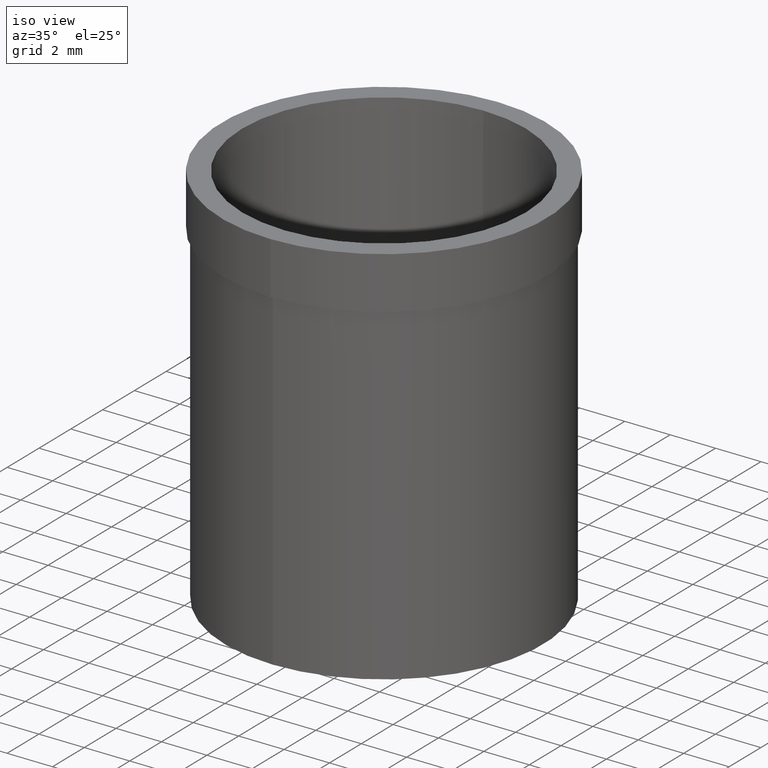
[diagram: clean part render]
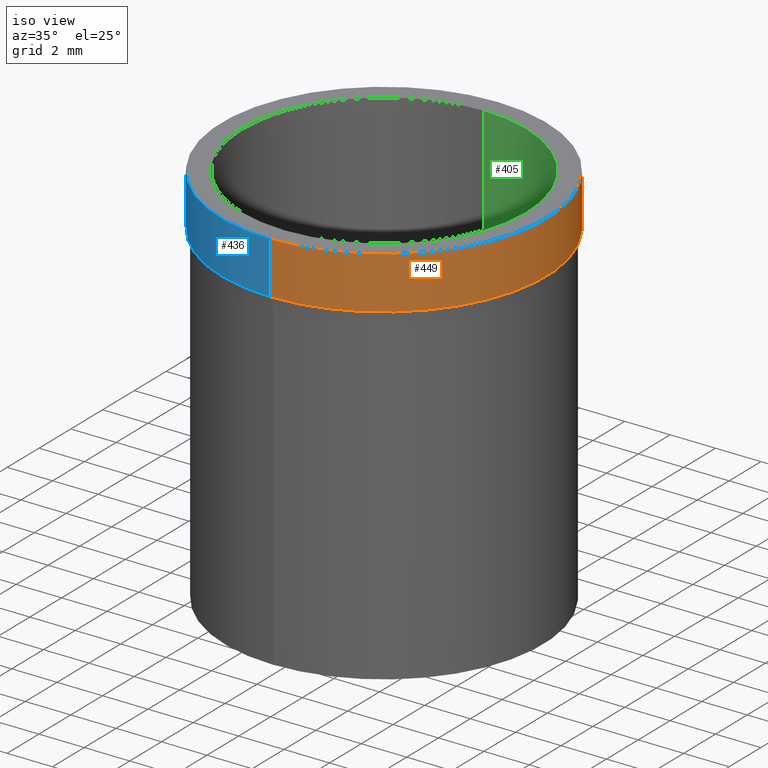
[diagram: same view with three faces highlighted in distinct colors, each labeled with its STEP entity id]
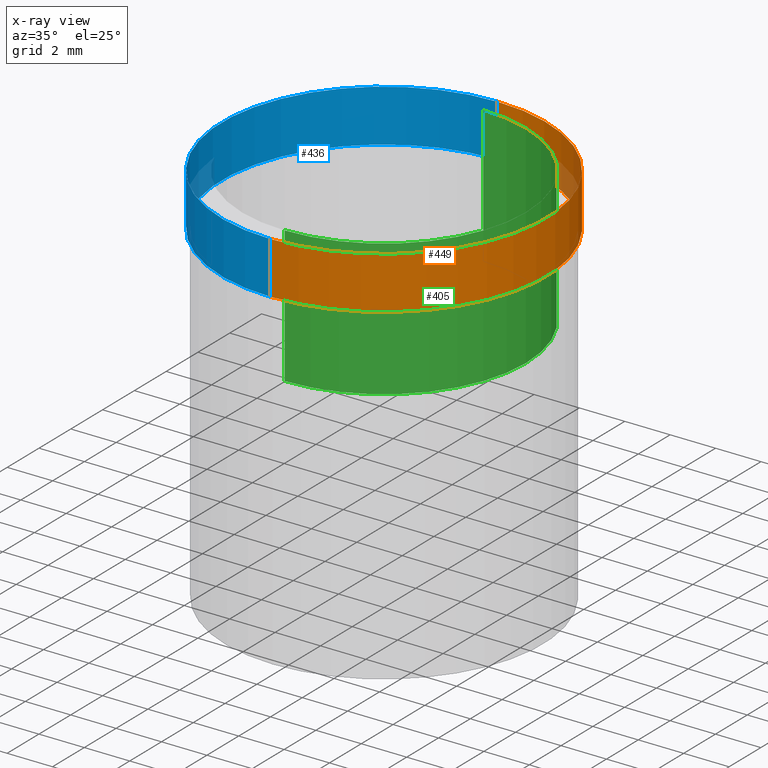
[diagram: x-ray of the same camera — body ghosted, the three highlighted faces saturated]
A machine part, iso view with three faces highlighted in distinct colors.
The next image is the same camera in x-ray (body ghosted, the three faces saturated) — at least one of them is partly hidden behind the body in this view.
Their STEP definitions:

[orange] entity #449 — the highlighted cylindrical surface (partial cylindrical patch) has radius 7.15 mm, axis along (0, 0, 1).
#40=CARTESIAN_POINT('',(0.E0,0.E0,1.776356839400E-14));
#41=DIRECTION('',(0.E0,0.E0,-1.E0));
#42=DIRECTION('',(0.E0,1.E0,0.E0));
#43=AXIS2_PLACEMENT_3D('',#40,#41,#42);
#64=DIRECTION('',(0.E0,0.E0,-1.E0));
#65=VECTOR('',#64,2.3E0);
#66=CARTESIAN_POINT('',(0.E0,-7.15E0,0.E0));
#67=LINE('',#66,#65);
#71=DIRECTION('',(0.E0,0.E0,-1.E0));
#72=VECTOR('',#71,2.3E0);
#73=CARTESIAN_POINT('',(0.E0,7.15E0,0.E0));
#74=LINE('',#73,#72);
#78=CARTESIAN_POINT('',(0.E0,0.E0,-2.3E0));
#79=DIRECTION('',(0.E0,0.E0,1.E0));
#80=DIRECTION('',(0.E0,-1.E0,0.E0));
#81=AXIS2_PLACEMENT_3D('',#78,#79,#80);
#332=CARTESIAN_POINT('',(0.E0,-7.15E0,1.776356839400E-14));
#333=CARTESIAN_POINT('',(0.E0,7.15E0,1.776356839400E-14));
#334=VERTEX_POINT('',#332);
#335=VERTEX_POINT('',#333);
#336=CARTESIAN_POINT('',(0.E0,7.15E0,-2.3E0));
#337=VERTEX_POINT('',#336);
#338=CARTESIAN_POINT('',(0.E0,-7.15E0,-2.3E0));
#339=VERTEX_POINT('',#338);
#437=CARTESIAN_POINT('',(0.E0,0.E0,-1.785E1));
#438=DIRECTION('',(0.E0,0.E0,1.E0));
#439=DIRECTION('',(0.E0,1.E0,0.E0));
#440=AXIS2_PLACEMENT_3D('',#437,#438,#439);
#441=CYLINDRICAL_SURFACE('',#440,7.15E0);
#442=ORIENTED_EDGE('',*,*,#427,.T.);
#444=ORIENTED_EDGE('',*,*,#443,.F.);
#445=ORIENTED_EDGE('',*,*,#430,.F.);
#446=ORIENTED_EDGE('',*,*,#413,.F.);
#447=EDGE_LOOP('',(#442,#444,#445,#446));
#448=FACE_OUTER_BOUND('',#447,.F.);
#44=CIRCLE('',#43,7.15E0);
#82=CIRCLE('',#81,7.15E0);
#413=EDGE_CURVE('',#335,#334,#44,.T.);
#427=EDGE_CURVE('',#335,#337,#74,.T.);
#430=EDGE_CURVE('',#334,#339,#67,.T.);
#443=EDGE_CURVE('',#339,#337,#82,.T.);
#449=ADVANCED_FACE('',(#448),#441,.T.);

[blue] entity #436 — the highlighted cylindrical surface (partial cylindrical patch) has radius 7.15 mm, axis along (0, 0, 1).
#32=CARTESIAN_POINT('',(0.E0,0.E0,1.776356839400E-14));
#33=DIRECTION('',(0.E0,0.E0,-1.E0));
#34=DIRECTION('',(0.E0,-1.E0,0.E0));
#35=AXIS2_PLACEMENT_3D('',#32,#33,#34);
#64=DIRECTION('',(0.E0,0.E0,-1.E0));
#65=VECTOR('',#64,2.3E0);
#66=CARTESIAN_POINT('',(0.E0,-7.15E0,0.E0));
#67=LINE('',#66,#65);
#71=DIRECTION('',(0.E0,0.E0,-1.E0));
#72=VECTOR('',#71,2.3E0);
#73=CARTESIAN_POINT('',(0.E0,7.15E0,0.E0));
#74=LINE('',#73,#72);
#86=CARTESIAN_POINT('',(0.E0,0.E0,-2.3E0));
#87=DIRECTION('',(0.E0,0.E0,1.E0));
#88=DIRECTION('',(0.E0,1.E0,0.E0));
#89=AXIS2_PLACEMENT_3D('',#86,#87,#88);
#332=CARTESIAN_POINT('',(0.E0,-7.15E0,1.776356839400E-14));
#333=CARTESIAN_POINT('',(0.E0,7.15E0,1.776356839400E-14));
#334=VERTEX_POINT('',#332);
#335=VERTEX_POINT('',#333);
#336=CARTESIAN_POINT('',(0.E0,7.15E0,-2.3E0));
#337=VERTEX_POINT('',#336);
#338=CARTESIAN_POINT('',(0.E0,-7.15E0,-2.3E0));
#339=VERTEX_POINT('',#338);
#422=CARTESIAN_POINT('',(0.E0,0.E0,-1.785E1));
#423=DIRECTION('',(0.E0,0.E0,1.E0));
#424=DIRECTION('',(0.E0,1.E0,0.E0));
#425=AXIS2_PLACEMENT_3D('',#422,#423,#424);
#426=CYLINDRICAL_SURFACE('',#425,7.15E0);
#428=ORIENTED_EDGE('',*,*,#427,.F.);
#429=ORIENTED_EDGE('',*,*,#411,.F.);
#431=ORIENTED_EDGE('',*,*,#430,.T.);
#433=ORIENTED_EDGE('',*,*,#432,.F.);
#434=EDGE_LOOP('',(#428,#429,#431,#433));
#435=FACE_OUTER_BOUND('',#434,.F.);
#36=CIRCLE('',#35,7.15E0);
#90=CIRCLE('',#89,7.15E0);
#411=EDGE_CURVE('',#334,#335,#36,.T.);
#427=EDGE_CURVE('',#335,#337,#74,.T.);
#430=EDGE_CURVE('',#334,#339,#67,.T.);
#432=EDGE_CURVE('',#337,#339,#90,.T.);
#436=ADVANCED_FACE('',(#435),#426,.T.);

[green] entity #405 — the highlighted cylindrical surface (partial cylindrical patch) has radius 6.25 mm, axis along (0, 0, 1).
#17=DIRECTION('',(0.E0,0.E0,1.E0));
#18=VECTOR('',#17,6.E0);
#19=CARTESIAN_POINT('',(0.E0,-6.25E0,-6.E0));
#20=LINE('',#19,#18);
#25=DIRECTION('',(0.E0,0.E0,1.E0));
#26=VECTOR('',#25,6.E0);
#27=CARTESIAN_POINT('',(0.E0,6.25E0,-6.E0));
#28=LINE('',#27,#26);
#48=CARTESIAN_POINT('',(0.E0,0.E0,1.776356839400E-14));
#49=DIRECTION('',(0.E0,0.E0,1.E0));
#50=DIRECTION('',(0.E0,-1.E0,0.E0));
#51=AXIS2_PLACEMENT_3D('',#48,#49,#50);
#300=CARTESIAN_POINT('',(0.E0,0.E0,-6.E0));
#301=DIRECTION('',(0.E0,0.E0,-1.E0));
#302=DIRECTION('',(0.E0,1.E0,0.E0));
#303=AXIS2_PLACEMENT_3D('',#300,#301,#302);
#324=CARTESIAN_POINT('',(0.E0,6.25E0,-6.E0));
#325=CARTESIAN_POINT('',(0.E0,6.25E0,0.E0));
#326=VERTEX_POINT('',#324);
#327=VERTEX_POINT('',#325);
#328=CARTESIAN_POINT('',(0.E0,-6.25E0,-6.E0));
#329=VERTEX_POINT('',#328);
#330=CARTESIAN_POINT('',(0.E0,-6.25E0,0.E0));
#331=VERTEX_POINT('',#330);
#392=CARTESIAN_POINT('',(0.E0,0.E0,-1.785E1));
#393=DIRECTION('',(0.E0,0.E0,1.E0));
#394=DIRECTION('',(0.E0,1.E0,0.E0));
#395=AXIS2_PLACEMENT_3D('',#392,#393,#394);
#396=CYLINDRICAL_SURFACE('',#395,6.25E0);
#397=ORIENTED_EDGE('',*,*,#381,.T.);
#399=ORIENTED_EDGE('',*,*,#398,.F.);
#400=ORIENTED_EDGE('',*,*,#385,.F.);
#402=ORIENTED_EDGE('',*,*,#401,.F.);
#403=EDGE_LOOP('',(#397,#399,#400,#402));
#404=FACE_OUTER_BOUND('',#403,.F.);
#52=CIRCLE('',#51,6.25E0);
#304=CIRCLE('',#303,6.25E0);
#381=EDGE_CURVE('',#326,#327,#28,.T.);
#385=EDGE_CURVE('',#329,#331,#20,.T.);
#398=EDGE_CURVE('',#331,#327,#52,.T.);
#401=EDGE_CURVE('',#326,#329,#304,.T.);
#405=ADVANCED_FACE('',(#404),#396,.F.);